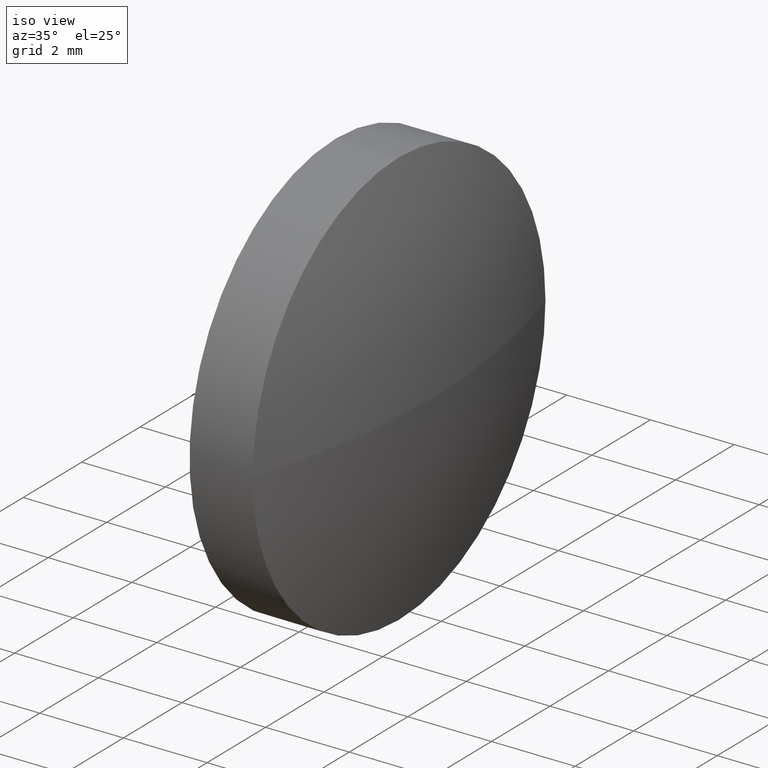
[diagram: clean part render]
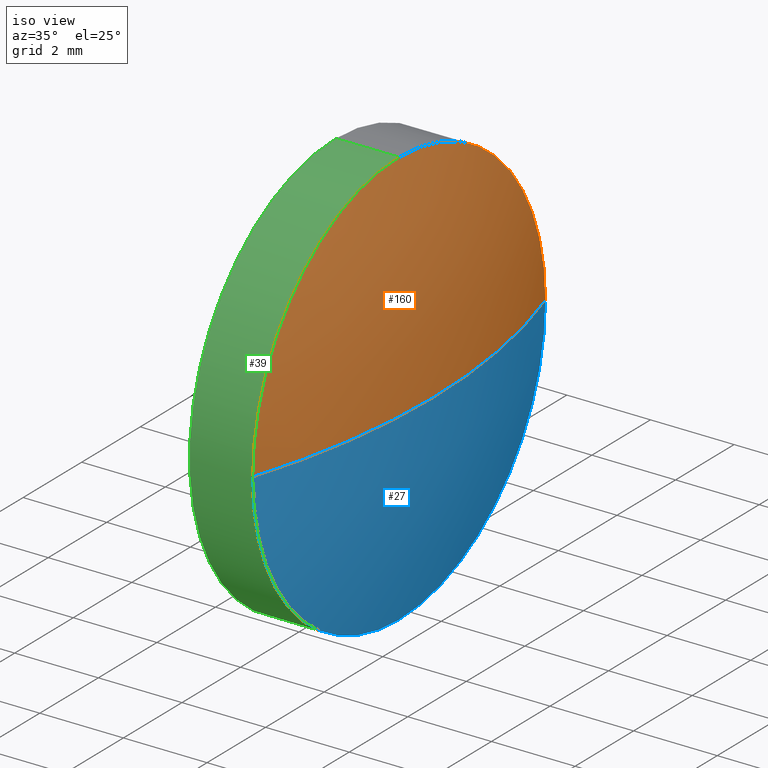
[diagram: same view with three faces highlighted in distinct colors, each labeled with its STEP entity id]
A machine part, iso view with three faces highlighted in distinct colors.
Their STEP definitions:

[orange] entity #160 — the highlighted spherical surface has radius 16.2178 mm.
#1 = AXIS2_PLACEMENT_3D ( 'NONE', #127, #180, #59 ) ;
#3 = CARTESIAN_POINT ( 'NONE',  ( 673.5480780452614900, 143.2040928477547100, 0.0000000000000000000 ) ) ;
#5 = EDGE_CURVE ( 'NONE', #115, #97, #75, .T. ) ;
#9 = CARTESIAN_POINT ( 'NONE',  ( 673.5480780452614900, 138.2040928477546800, -6.123233995736711100E-016 ) ) ;
#10 = AXIS2_PLACEMENT_3D ( 'NONE', #49, #144, #56 ) ;
#20 = DIRECTION ( 'NONE',  ( -0.0000000000000000000, 0.0000000000000000000, 1.000000000000000000 ) ) ;
#21 = ORIENTED_EDGE ( 'NONE', *, *, #119, .T. ) ;
#22 = CARTESIAN_POINT ( 'NONE',  ( 658.1202932351349100, 143.2040928477546200, 0.0000000000000000000 ) ) ;
#31 = CARTESIAN_POINT ( 'NONE',  ( 673.5480780452614900, 143.2040928477547100, 5.000000000000004400 ) ) ;
#34 = ORIENTED_EDGE ( 'NONE', *, *, #84, .F. ) ;
#37 = EDGE_CURVE ( 'NONE', #97, #168, #38, .T. ) ;
#38 = CIRCLE ( 'NONE', #123, 5.000000000000004400 ) ;
#42 = CARTESIAN_POINT ( 'NONE',  ( 673.5480780452614900, 148.2040928477546500, 0.0000000000000000000 ) ) ;
#49 = CARTESIAN_POINT ( 'NONE',  ( 658.1202932351349100, 143.2040928477546200, 0.0000000000000000000 ) ) ;
#56 = DIRECTION ( 'NONE',  ( 0.0000000000000000000, 1.000000000000000000, 0.0000000000000000000 ) ) ;
#59 = DIRECTION ( 'NONE',  ( 0.0000000000000000000, 0.0000000000000000000, 1.000000000000000000 ) ) ;
#65 = ORIENTED_EDGE ( 'NONE', *, *, #37, .F. ) ;
#70 = DIRECTION ( 'NONE',  ( 1.000000000000000000, 0.0000000000000000000, 0.0000000000000000000 ) ) ;
#72 = CARTESIAN_POINT ( 'NONE',  ( 674.3380780452614500, 143.2040928477546200, 0.0000000000000000000 ) ) ;
#75 = CIRCLE ( 'NONE', #80, 16.21778481012661600 ) ;
#80 = AXIS2_PLACEMENT_3D ( 'NONE', #179, #95, #114 ) ;
#82 = DIRECTION ( 'NONE',  ( -1.000000000000000000, -0.0000000000000000000, -0.0000000000000000000 ) ) ;
#84 = EDGE_CURVE ( 'NONE', #168, #86, #122, .T. ) ;
#86 = VERTEX_POINT ( 'NONE', #42 ) ;
#94 = CIRCLE ( 'NONE', #141, 16.21778481012658800 ) ;
#95 = DIRECTION ( 'NONE',  ( 0.0000000000000000000, 1.224646799147353200E-016, -1.000000000000000000 ) ) ;
#97 = VERTEX_POINT ( 'NONE', #9 ) ;
#106 = EDGE_LOOP ( 'NONE', ( #140, #21, #34, #65 ) ) ;
#114 = DIRECTION ( 'NONE',  ( 0.0000000000000000000, 1.000000000000000000, 1.224646799147353700E-016 ) ) ;
#115 = VERTEX_POINT ( 'NONE', #72 ) ;
#116 = DIRECTION ( 'NONE',  ( 0.0000000000000000000, 0.0000000000000000000, 1.000000000000000000 ) ) ;
#119 = EDGE_CURVE ( 'NONE', #115, #86, #94, .T. ) ;
#122 = CIRCLE ( 'NONE', #1, 5.000000000000004400 ) ;
#123 = AXIS2_PLACEMENT_3D ( 'NONE', #3, #82, #116 ) ;
#127 = CARTESIAN_POINT ( 'NONE',  ( 673.5480780452614900, 143.2040928477547100, 0.0000000000000000000 ) ) ;
#137 = FACE_OUTER_BOUND ( 'NONE', #106, .T. ) ;
#140 = ORIENTED_EDGE ( 'NONE', *, *, #5, .F. ) ;
#141 = AXIS2_PLACEMENT_3D ( 'NONE', #22, #20, #70 ) ;
#144 = DIRECTION ( 'NONE',  ( -0.0000000000000000000, 0.0000000000000000000, -1.000000000000000000 ) ) ;
#151 = SPHERICAL_SURFACE ( 'NONE', #10, 16.21778481012662400 ) ;
#160 = ADVANCED_FACE ( 'NONE', ( #137 ), #151, .T. ) ;
#168 = VERTEX_POINT ( 'NONE', #31 ) ;
#179 = CARTESIAN_POINT ( 'NONE',  ( 658.1202932351349100, 143.2040928477546200, 0.0000000000000000000 ) ) ;
#180 = DIRECTION ( 'NONE',  ( -1.000000000000000000, -0.0000000000000000000, -0.0000000000000000000 ) ) ;

[blue] entity #27 — the highlighted spherical surface has radius 16.2178 mm.
#5 = EDGE_CURVE ( 'NONE', #115, #97, #75, .T. ) ;
#6 = VERTEX_POINT ( 'NONE', #43 ) ;
#9 = CARTESIAN_POINT ( 'NONE',  ( 673.5480780452614900, 138.2040928477546800, -6.123233995736711100E-016 ) ) ;
#11 = EDGE_LOOP ( 'NONE', ( #177, #136, #35, #143 ) ) ;
#18 = CARTESIAN_POINT ( 'NONE',  ( 658.1202932351349100, 143.2040928477546200, 0.0000000000000000000 ) ) ;
#20 = DIRECTION ( 'NONE',  ( -0.0000000000000000000, 0.0000000000000000000, 1.000000000000000000 ) ) ;
#22 = CARTESIAN_POINT ( 'NONE',  ( 658.1202932351349100, 143.2040928477546200, 0.0000000000000000000 ) ) ;
#27 = ADVANCED_FACE ( 'NONE', ( #150 ), #68, .T. ) ;
#35 = ORIENTED_EDGE ( 'NONE', *, *, #77, .F. ) ;
#42 = CARTESIAN_POINT ( 'NONE',  ( 673.5480780452614900, 148.2040928477546500, 0.0000000000000000000 ) ) ;
#43 = CARTESIAN_POINT ( 'NONE',  ( 673.5480780452614900, 143.2040928477547100, -5.000000000000004400 ) ) ;
#55 = DIRECTION ( 'NONE',  ( -0.0000000000000000000, 0.0000000000000000000, -1.000000000000000000 ) ) ;
#68 = SPHERICAL_SURFACE ( 'NONE', #135, 16.21778481012662400 ) ;
#70 = DIRECTION ( 'NONE',  ( 1.000000000000000000, 0.0000000000000000000, 0.0000000000000000000 ) ) ;
#72 = CARTESIAN_POINT ( 'NONE',  ( 674.3380780452614500, 143.2040928477546200, 0.0000000000000000000 ) ) ;
#75 = CIRCLE ( 'NONE', #80, 16.21778481012661600 ) ;
#77 = EDGE_CURVE ( 'NONE', #6, #97, #185, .T. ) ;
#80 = AXIS2_PLACEMENT_3D ( 'NONE', #179, #95, #114 ) ;
#86 = VERTEX_POINT ( 'NONE', #42 ) ;
#87 = DIRECTION ( 'NONE',  ( -1.000000000000000000, -0.0000000000000000000, -0.0000000000000000000 ) ) ;
#91 = CIRCLE ( 'NONE', #131, 5.000000000000004400 ) ;
#94 = CIRCLE ( 'NONE', #141, 16.21778481012658800 ) ;
#95 = DIRECTION ( 'NONE',  ( 0.0000000000000000000, 1.224646799147353200E-016, -1.000000000000000000 ) ) ;
#97 = VERTEX_POINT ( 'NONE', #9 ) ;
#98 = EDGE_CURVE ( 'NONE', #86, #6, #91, .T. ) ;
#100 = CARTESIAN_POINT ( 'NONE',  ( 673.5480780452614900, 143.2040928477547100, 0.0000000000000000000 ) ) ;
#101 = CARTESIAN_POINT ( 'NONE',  ( 673.5480780452614900, 143.2040928477547100, 0.0000000000000000000 ) ) ;
#114 = DIRECTION ( 'NONE',  ( 0.0000000000000000000, 1.000000000000000000, 1.224646799147353700E-016 ) ) ;
#115 = VERTEX_POINT ( 'NONE', #72 ) ;
#119 = EDGE_CURVE ( 'NONE', #115, #86, #94, .T. ) ;
#124 = AXIS2_PLACEMENT_3D ( 'NONE', #100, #87, #130 ) ;
#130 = DIRECTION ( 'NONE',  ( 0.0000000000000000000, 0.0000000000000000000, 1.000000000000000000 ) ) ;
#131 = AXIS2_PLACEMENT_3D ( 'NONE', #101, #149, #170 ) ;
#135 = AXIS2_PLACEMENT_3D ( 'NONE', #18, #55, #167 ) ;
#136 = ORIENTED_EDGE ( 'NONE', *, *, #5, .T. ) ;
#141 = AXIS2_PLACEMENT_3D ( 'NONE', #22, #20, #70 ) ;
#143 = ORIENTED_EDGE ( 'NONE', *, *, #98, .F. ) ;
#149 = DIRECTION ( 'NONE',  ( -1.000000000000000000, -0.0000000000000000000, -0.0000000000000000000 ) ) ;
#150 = FACE_OUTER_BOUND ( 'NONE', #11, .T. ) ;
#167 = DIRECTION ( 'NONE',  ( 0.0000000000000000000, 1.000000000000000000, 0.0000000000000000000 ) ) ;
#170 = DIRECTION ( 'NONE',  ( 0.0000000000000000000, 0.0000000000000000000, 1.000000000000000000 ) ) ;
#177 = ORIENTED_EDGE ( 'NONE', *, *, #119, .F. ) ;
#179 = CARTESIAN_POINT ( 'NONE',  ( 658.1202932351349100, 143.2040928477546200, 0.0000000000000000000 ) ) ;
#185 = CIRCLE ( 'NONE', #124, 5.000000000000004400 ) ;

[green] entity #39 — the highlighted cylindrical surface (partial cylindrical patch) has radius 5 mm, axis along (-1, -0, -0).
#2 = LINE ( 'NONE', #169, #105 ) ;
#3 = CARTESIAN_POINT ( 'NONE',  ( 673.5480780452614900, 143.2040928477547100, 0.0000000000000000000 ) ) ;
#6 = VERTEX_POINT ( 'NONE', #43 ) ;
#9 = CARTESIAN_POINT ( 'NONE',  ( 673.5480780452614900, 138.2040928477546800, -6.123233995736711100E-016 ) ) ;
#16 = CARTESIAN_POINT ( 'NONE',  ( 671.2404057911960500, 143.2040928477547100, 0.0000000000000000000 ) ) ;
#29 = CARTESIAN_POINT ( 'NONE',  ( 672.0380780452615000, 143.2040928477547100, -5.000000000000004400 ) ) ;
#30 = CARTESIAN_POINT ( 'NONE',  ( 672.0380780452615000, 143.2040928477547100, 0.0000000000000000000 ) ) ;
#31 = CARTESIAN_POINT ( 'NONE',  ( 673.5480780452614900, 143.2040928477547100, 5.000000000000004400 ) ) ;
#37 = EDGE_CURVE ( 'NONE', #97, #168, #38, .T. ) ;
#38 = CIRCLE ( 'NONE', #123, 5.000000000000004400 ) ;
#39 = ADVANCED_FACE ( 'NONE', ( #53 ), #78, .T. ) ;
#40 = DIRECTION ( 'NONE',  ( -1.000000000000000000, -0.0000000000000000000, -0.0000000000000000000 ) ) ;
#43 = CARTESIAN_POINT ( 'NONE',  ( 673.5480780452614900, 143.2040928477547100, -5.000000000000004400 ) ) ;
#45 = ORIENTED_EDGE ( 'NONE', *, *, #77, .T. ) ;
#50 = ORIENTED_EDGE ( 'NONE', *, *, #108, .F. ) ;
#51 = DIRECTION ( 'NONE',  ( -1.000000000000000000, -0.0000000000000000000, -0.0000000000000000000 ) ) ;
#52 = ORIENTED_EDGE ( 'NONE', *, *, #37, .T. ) ;
#53 = FACE_OUTER_BOUND ( 'NONE', #134, .T. ) ;
#54 = EDGE_CURVE ( 'NONE', #168, #184, #2, .T. ) ;
#60 = CARTESIAN_POINT ( 'NONE',  ( 671.2404057911960500, 143.2040928477547100, -5.000000000000004400 ) ) ;
#64 = DIRECTION ( 'NONE',  ( 0.0000000000000000000, 0.0000000000000000000, 1.000000000000000000 ) ) ;
#77 = EDGE_CURVE ( 'NONE', #6, #97, #185, .T. ) ;
#78 = CYLINDRICAL_SURFACE ( 'NONE', #148, 5.000000000000004400 ) ;
#79 = LINE ( 'NONE', #60, #107 ) ;
#82 = DIRECTION ( 'NONE',  ( -1.000000000000000000, -0.0000000000000000000, -0.0000000000000000000 ) ) ;
#87 = DIRECTION ( 'NONE',  ( -1.000000000000000000, -0.0000000000000000000, -0.0000000000000000000 ) ) ;
#90 = ORIENTED_EDGE ( 'NONE', *, *, #54, .T. ) ;
#93 = EDGE_CURVE ( 'NONE', #6, #117, #79, .T. ) ;
#97 = VERTEX_POINT ( 'NONE', #9 ) ;
#100 = CARTESIAN_POINT ( 'NONE',  ( 673.5480780452614900, 143.2040928477547100, 0.0000000000000000000 ) ) ;
#105 = VECTOR ( 'NONE', #118, 1000.000000000000000 ) ;
#107 = VECTOR ( 'NONE', #121, 1000.000000000000000 ) ;
#108 = EDGE_CURVE ( 'NONE', #117, #184, #163, .T. ) ;
#116 = DIRECTION ( 'NONE',  ( 0.0000000000000000000, 0.0000000000000000000, 1.000000000000000000 ) ) ;
#117 = VERTEX_POINT ( 'NONE', #29 ) ;
#118 = DIRECTION ( 'NONE',  ( -1.000000000000000000, -0.0000000000000000000, -0.0000000000000000000 ) ) ;
#120 = CARTESIAN_POINT ( 'NONE',  ( 672.0380780452615000, 143.2040928477547100, 5.000000000000004400 ) ) ;
#121 = DIRECTION ( 'NONE',  ( -1.000000000000000000, -0.0000000000000000000, -0.0000000000000000000 ) ) ;
#123 = AXIS2_PLACEMENT_3D ( 'NONE', #3, #82, #116 ) ;
#124 = AXIS2_PLACEMENT_3D ( 'NONE', #100, #87, #130 ) ;
#128 = ORIENTED_EDGE ( 'NONE', *, *, #93, .F. ) ;
#130 = DIRECTION ( 'NONE',  ( 0.0000000000000000000, 0.0000000000000000000, 1.000000000000000000 ) ) ;
#134 = EDGE_LOOP ( 'NONE', ( #128, #45, #52, #90, #50 ) ) ;
#138 = AXIS2_PLACEMENT_3D ( 'NONE', #30, #51, #147 ) ;
#147 = DIRECTION ( 'NONE',  ( 0.0000000000000000000, 0.0000000000000000000, 1.000000000000000000 ) ) ;
#148 = AXIS2_PLACEMENT_3D ( 'NONE', #16, #40, #64 ) ;
#163 = CIRCLE ( 'NONE', #138, 5.000000000000004400 ) ;
#168 = VERTEX_POINT ( 'NONE', #31 ) ;
#169 = CARTESIAN_POINT ( 'NONE',  ( 671.2404057911960500, 143.2040928477547100, 5.000000000000004400 ) ) ;
#184 = VERTEX_POINT ( 'NONE', #120 ) ;
#185 = CIRCLE ( 'NONE', #124, 5.000000000000004400 ) ;